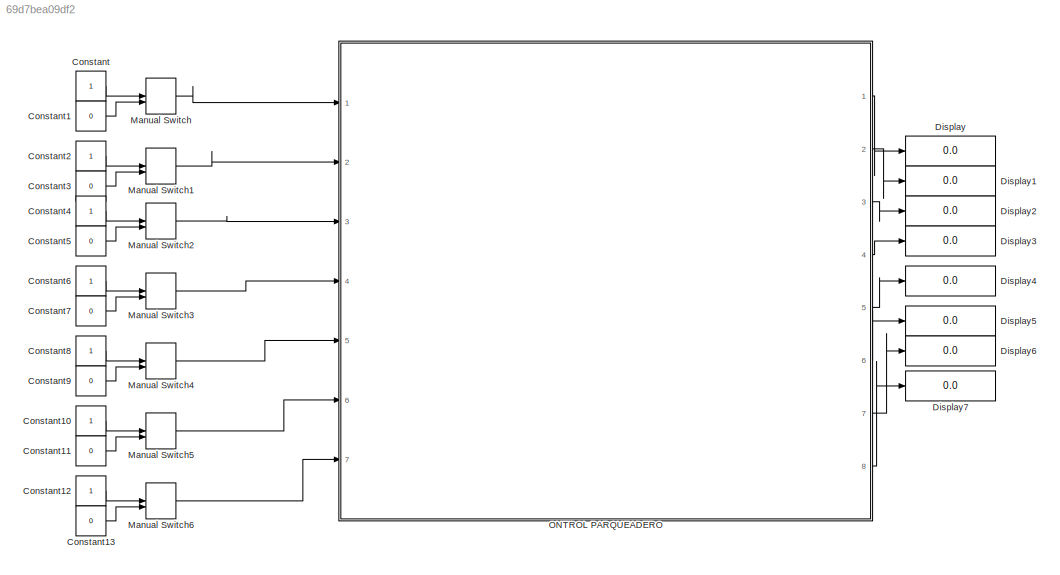
MODEL slx_69d7bea09df2
KIND model
CONFIG AbsTol = auto
CONFIG EnableMultiTasking = off
CONFIG FixedStep = auto
CONFIG MaxStep = auto
CONFIG MinStep = auto
CONFIG RelTol = 1e-3
CONFIG SampleTimeConstraint = Unconstrained
CONFIG Solver = VariableStepAuto
CONFIG SolverName = VariableStepAuto
CONFIG StartTime = 0.0
CONFIG StopTime = inf
BLOCK [Constant] Constant
BLOCK [Constant] Constant1
  Value = 0
BLOCK [Constant] Constant10
BLOCK [Constant] Constant11
  Value = 0
BLOCK [Constant] Constant12
BLOCK [Constant] Constant13
  Value = 0
BLOCK [Constant] Constant2
BLOCK [Constant] Constant3
  Value = 0
BLOCK [Constant] Constant4
BLOCK [Constant] Constant5
  Value = 0
BLOCK [Constant] Constant6
BLOCK [Constant] Constant7
  Value = 0
BLOCK [Constant] Constant8
BLOCK [Constant] Constant9
  Value = 0
BLOCK [Display] Display
  Decimation = 1
  Ports = [1]
BLOCK [Display] Display1
  Decimation = 1
  Ports = [1]
BLOCK [Display] Display2
  Decimation = 1
  Ports = [1]
BLOCK [Display] Display3
  Decimation = 1
  Ports = [1]
BLOCK [Display] Display4
  Decimation = 1
  Ports = [1]
BLOCK [Display] Display5
  Decimation = 1
  Ports = [1]
BLOCK [Display] Display6
  Decimation = 1
  Ports = [1]
BLOCK [Display] Display7
  Decimation = 1
  Ports = [1]
BLOCK [ManualSwitch] Manual Switch
  CurrentSetting = 0
BLOCK [ManualSwitch] Manual Switch1
  CurrentSetting = 0
BLOCK [ManualSwitch] Manual Switch2
  CurrentSetting = 0
BLOCK [ManualSwitch] Manual Switch3
  CurrentSetting = 0
BLOCK [ManualSwitch] Manual Switch4
  CurrentSetting = 0
BLOCK [ManualSwitch] Manual Switch5
  CurrentSetting = 0
BLOCK [ManualSwitch] Manual Switch6
  CurrentSetting = 0
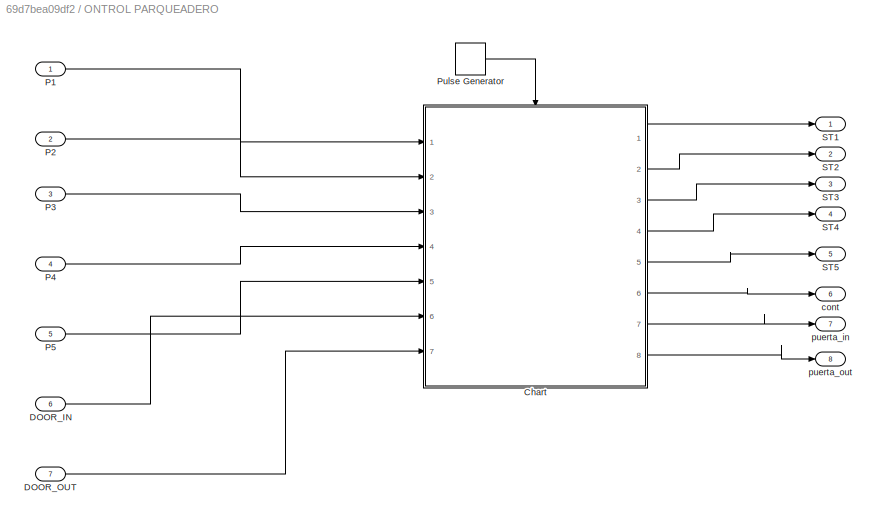
BLOCK [SubSystem] ONTROL PARQUEADERO
  Ports = [7, 8]
  RequestExecContextInheritance = off
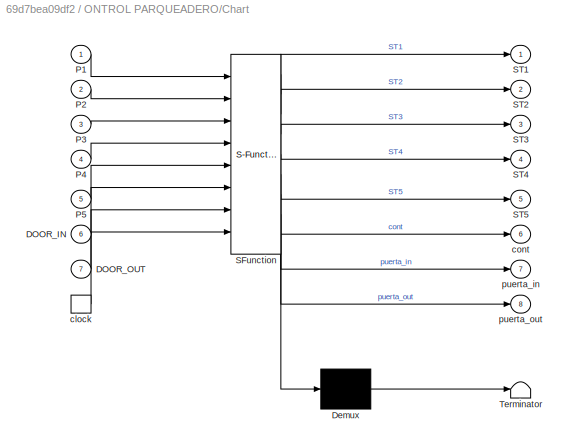
BLOCK [SubSystem] ONTROL PARQUEADERO/Chart
  ErrorFcn = Stateflow.Translate.translate
  PermitHierarchicalResolution = ExplicitOnly
  Ports = [7, 8, 0, 1]
  RequestExecContextInheritance = off
  SFBlockType = Chart
  TreatAsAtomicUnit = on
BLOCK [Demux] ONTROL PARQUEADERO/Chart/ Demux 
  Outputs = 1
  Ports = [1, 1]
BLOCK [S-Function] ONTROL PARQUEADERO/Chart/ SFunction 
  EnableBusSupport = on
  FunctionName = sf_sfun
  PortCounts = [8 9]
  Ports = [8, 9]
  SFcnIsStateOwnerBlock = off
  SFunctionDeploymentMode = off
  Tag = Stateflow S-Function control_parqueadero_3 3
BLOCK [Terminator] ONTROL PARQUEADERO/Chart/ Terminator 
BLOCK [Inport] ONTROL PARQUEADERO/Chart/DOOR_IN
  Port = 6
BLOCK [Inport] ONTROL PARQUEADERO/Chart/DOOR_OUT
  Port = 7
BLOCK [Inport] ONTROL PARQUEADERO/Chart/P1
BLOCK [Inport] ONTROL PARQUEADERO/Chart/P2
  Port = 2
BLOCK [Inport] ONTROL PARQUEADERO/Chart/P3
  Port = 3
BLOCK [Inport] ONTROL PARQUEADERO/Chart/P4
  Port = 4
BLOCK [Inport] ONTROL PARQUEADERO/Chart/P5
  Port = 5
BLOCK [Outport] ONTROL PARQUEADERO/Chart/ST1
BLOCK [Outport] ONTROL PARQUEADERO/Chart/ST2
  Port = 2
BLOCK [Outport] ONTROL PARQUEADERO/Chart/ST3
  Port = 3
BLOCK [Outport] ONTROL PARQUEADERO/Chart/ST4
  Port = 4
BLOCK [Outport] ONTROL PARQUEADERO/Chart/ST5
  Port = 5
BLOCK [TriggerPort] ONTROL PARQUEADERO/Chart/clock
  Ports = [0, 1]
  ShowOutputPort = on
  StatesWhenEnabling = held
  TriggerType = either
  VariantControl = (inherit)
BLOCK [Outport] ONTROL PARQUEADERO/Chart/cont
  Port = 6
BLOCK [Outport] ONTROL PARQUEADERO/Chart/puerta_in
  Port = 7
BLOCK [Outport] ONTROL PARQUEADERO/Chart/puerta_out
  Port = 8
BLOCK [Inport] ONTROL PARQUEADERO/DOOR_IN
  Port = 6
BLOCK [Inport] ONTROL PARQUEADERO/DOOR_OUT
  Port = 7
BLOCK [Inport] ONTROL PARQUEADERO/P1
BLOCK [Inport] ONTROL PARQUEADERO/P2
  Port = 2
BLOCK [Inport] ONTROL PARQUEADERO/P3
  Port = 3
BLOCK [Inport] ONTROL PARQUEADERO/P4
  Port = 4
BLOCK [Inport] ONTROL PARQUEADERO/P5
  Port = 5
BLOCK [DiscretePulseGenerator] ONTROL PARQUEADERO/Pulse Generator
  Period = 1/1000
  Ports = [0, 1]
  PulseType = Time based
  PulseWidth = 50
BLOCK [Outport] ONTROL PARQUEADERO/ST1
BLOCK [Outport] ONTROL PARQUEADERO/ST2
  Port = 2
BLOCK [Outport] ONTROL PARQUEADERO/ST3
  Port = 3
BLOCK [Outport] ONTROL PARQUEADERO/ST4
  Port = 4
BLOCK [Outport] ONTROL PARQUEADERO/ST5
  Port = 5
BLOCK [Outport] ONTROL PARQUEADERO/cont
  Port = 6
BLOCK [Outport] ONTROL PARQUEADERO/puerta_in
  Port = 7
BLOCK [Outport] ONTROL PARQUEADERO/puerta_out
  Port = 8
LINE Constant10:1 -> Manual Switch5:1
LINE Constant11:1 -> Manual Switch5:2
LINE Constant12:1 -> Manual Switch6:1
LINE Constant13:1 -> Manual Switch6:2
LINE Constant1:1 -> Manual Switch:2
LINE Constant2:1 -> Manual Switch1:1
LINE Constant3:1 -> Manual Switch1:2
LINE Constant4:1 -> Manual Switch2:1
LINE Constant5:1 -> Manual Switch2:2
LINE Constant6:1 -> Manual Switch3:1
LINE Constant7:1 -> Manual Switch3:2
LINE Constant8:1 -> Manual Switch4:1
LINE Constant9:1 -> Manual Switch4:2
LINE Constant:1 -> Manual Switch:1
LINE Manual Switch1:1 -> ONTROL PARQUEADERO:2
LINE Manual Switch2:1 -> ONTROL PARQUEADERO:3
LINE Manual Switch3:1 -> ONTROL PARQUEADERO:4
LINE Manual Switch4:1 -> ONTROL PARQUEADERO:5
LINE Manual Switch5:1 -> ONTROL PARQUEADERO:6
LINE Manual Switch6:1 -> ONTROL PARQUEADERO:7
LINE Manual Switch:1 -> ONTROL PARQUEADERO:1
LINE ONTROL PARQUEADERO/Chart:1 -> ONTROL PARQUEADERO/ST1:1
LINE ONTROL PARQUEADERO/Chart:2 -> ONTROL PARQUEADERO/ST2:1
LINE ONTROL PARQUEADERO/Chart:3 -> ONTROL PARQUEADERO/ST3:1
LINE ONTROL PARQUEADERO/Chart:4 -> ONTROL PARQUEADERO/ST4:1
LINE ONTROL PARQUEADERO/Chart:5 -> ONTROL PARQUEADERO/ST5:1
LINE ONTROL PARQUEADERO/Chart:6 -> ONTROL PARQUEADERO/cont:1
LINE ONTROL PARQUEADERO/Chart:7 -> ONTROL PARQUEADERO/puerta_in:1
LINE ONTROL PARQUEADERO/Chart:8 -> ONTROL PARQUEADERO/puerta_out:1
LINE ONTROL PARQUEADERO/DOOR_IN:1 -> ONTROL PARQUEADERO/Chart:6
LINE ONTROL PARQUEADERO/DOOR_OUT:1 -> ONTROL PARQUEADERO/Chart:7
LINE ONTROL PARQUEADERO/P1:1 -> ONTROL PARQUEADERO/Chart:1
LINE ONTROL PARQUEADERO/P2:1 -> ONTROL PARQUEADERO/Chart:2
LINE ONTROL PARQUEADERO/P3:1 -> ONTROL PARQUEADERO/Chart:3
LINE ONTROL PARQUEADERO/P4:1 -> ONTROL PARQUEADERO/Chart:4
LINE ONTROL PARQUEADERO/P5:1 -> ONTROL PARQUEADERO/Chart:5
LINE ONTROL PARQUEADERO/Pulse Generator:1 -> ONTROL PARQUEADERO/Chart:trigger
LINE ONTROL PARQUEADERO:1 -> Display:1
LINE ONTROL PARQUEADERO:2 -> Display1:1
LINE ONTROL PARQUEADERO:3 -> Display2:1
LINE ONTROL PARQUEADERO:4 -> Display3:1
LINE ONTROL PARQUEADERO:5 -> Display4:1
LINE ONTROL PARQUEADERO:6 -> Display5:1
LINE ONTROL PARQUEADERO:7 -> Display6:1
LINE ONTROL PARQUEADERO:8 -> Display7:1
CHART ONTROL PARQUEADERO/Chart states=15 transitions=30
  STATE_LABEL 'PARQ1_ON\nentry:\nST1=1;'
  STATE_LABEL 'PARQ1_OFF\nentry:\nST1=0;'
  STATE_LABEL 'PARQ2_ON\nentry:\nST2=1;'
  STATE_LABEL 'PARQ2_OFF\nentry:\nST2=0;'
  STATE_LABEL 'aumentar\nentry:\npuerta_in=0;\ncont1=cont1+1;\ncont=cont+1;\n'
  STATE_LABEL 'INICIO\nentry:\nST1=0;\nST2=0;\nST3=0;\nST4=0;\nST5=0;\n'
  STATE_LABEL 'abrir\nentry:\npuerta_in=1'
  STATE_LABEL 'PARQ3_ON\nentry:\nST3=1;'
  STATE_LABEL 'PARQ3_OFF\nentry:\nST3=0;'
  STATE_LABEL 'abrir1\nentry:\npuerta_out=1'
  STATE_LABEL 'PARQ4_ON\nentry:\nST4=1;'
  STATE_LABEL 'disminuir\nentry:\npuerta_out=0;\ncont1=cont1-1;\ncont=cont-1;\n'
  STATE_LABEL 'PARQ4_OFF\nentry:\nST4=0;'
  STATE_LABEL 'PARQ5_ON\nentry:\nST5=1;'
  STATE_LABEL 'PARQ5_OFF\nentry:\nST5=0;'
